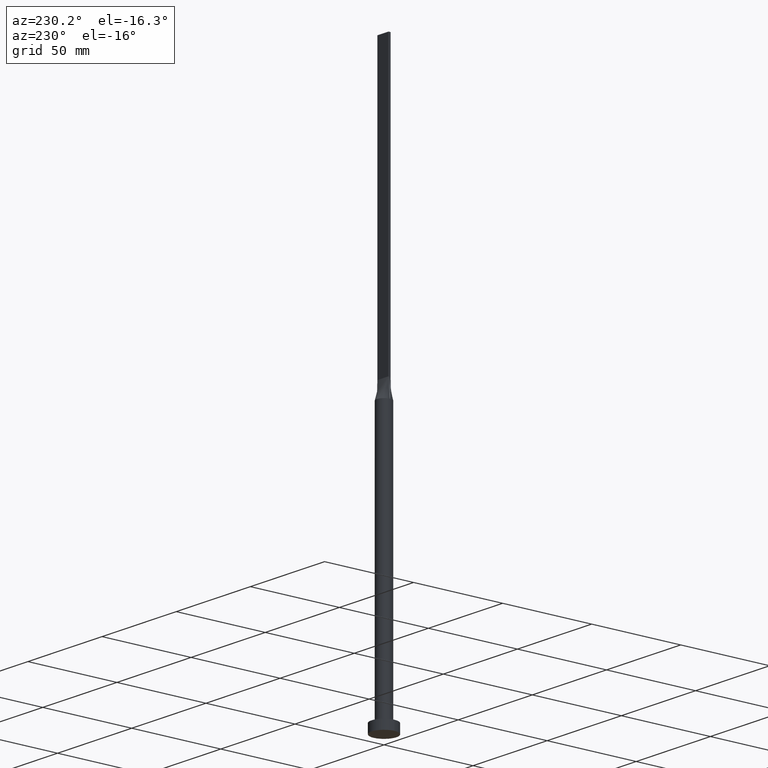
[diagram: clean part render]
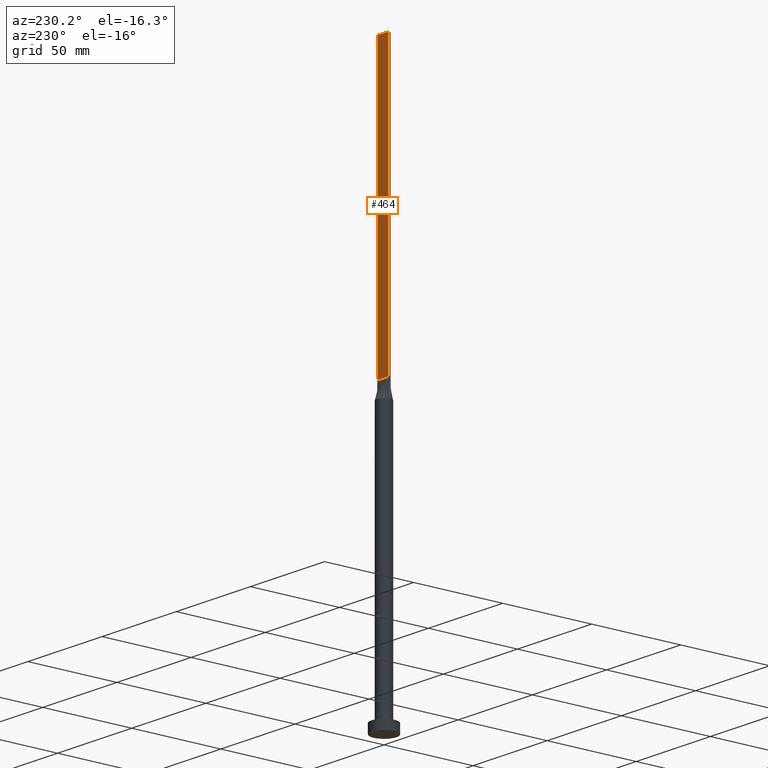
[diagram: same view with one face highlighted and labeled with its STEP entity id]
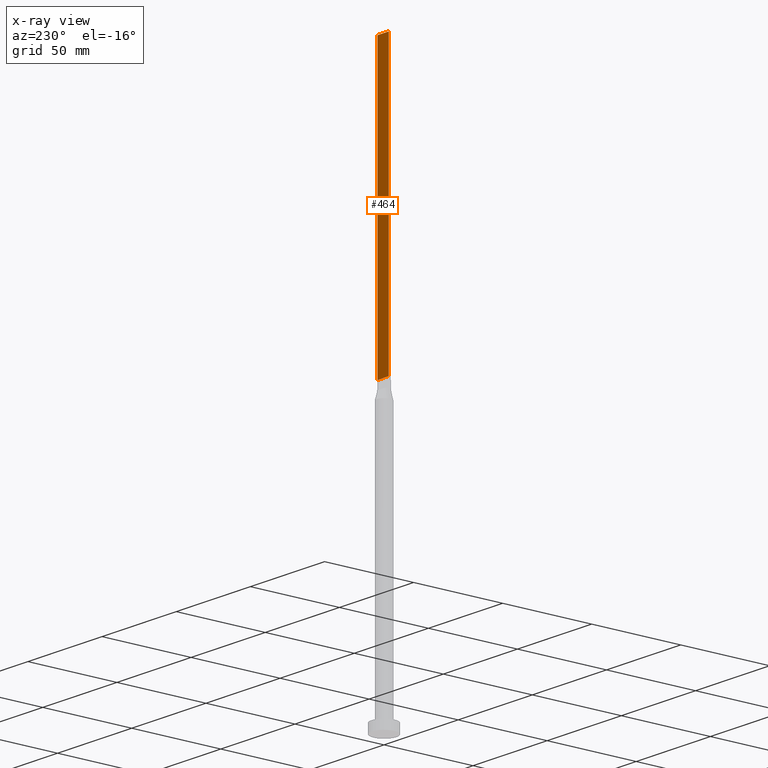
[diagram: x-ray of the same camera — body ghosted, the highlighted face saturated]
A machine part, auxiliary view. The second image highlights one B-rep face of the part: STEP entity #464.
The next image is the same camera in x-ray: the body ghosted, the highlighted face saturated — about 0% of this face is hidden behind the body in this view.
In plain terms, the highlighted planar face has unit normal (0, -1, 0).
Its self-contained STEP definition (entity closure, byte-faithful):
#23 = VERTEX_POINT ( 'NONE', #36 ) ;
#30 = ORIENTED_EDGE ( 'NONE', *, *, #444, .F. ) ;
#36 = CARTESIAN_POINT ( 'NONE',  ( 3.750000000000000000, 0.6000000000000001998, 160.0000000000000000 ) ) ;
#40 = DIRECTION ( 'NONE',  ( 0.000000000000000000, -1.000000000000000000, 0.000000000000000000 ) ) ;
#54 = VERTEX_POINT ( 'NONE', #570 ) ;
#88 = CARTESIAN_POINT ( 'NONE',  ( 3.750000000000000000, 0.6000000000000001998, 315.0000000000000000 ) ) ;
#97 = DIRECTION ( 'NONE',  ( -1.000000000000000000, 0.000000000000000000, 0.000000000000000000 ) ) ;
#99 = LINE ( 'NONE', #549, #489 ) ;
#103 = CARTESIAN_POINT ( 'NONE',  ( 3.750000000000000000, 0.6000000000000001998, 315.0000000000000000 ) ) ;
#107 = CARTESIAN_POINT ( 'NONE',  ( -3.750000000000000000, 0.6000000000000001998, 160.0000000000000000 ) ) ;
#118 = VECTOR ( 'NONE', #155, 1000.000000000000000 ) ;
#137 = CARTESIAN_POINT ( 'NONE',  ( 3.750000000000000000, 0.6000000000000001998, 315.0000000000000000 ) ) ;
#143 = PLANE ( 'NONE',  #173 ) ;
#155 = DIRECTION ( 'NONE',  ( -0.000000000000000000, -0.000000000000000000, -1.000000000000000000 ) ) ;
#173 = AXIS2_PLACEMENT_3D ( 'NONE', #137, #40, #360 ) ;
#231 = DIRECTION ( 'NONE',  ( -0.000000000000000000, -0.000000000000000000, -1.000000000000000000 ) ) ;
#244 = CARTESIAN_POINT ( 'NONE',  ( -3.750000000000000000, 0.6000000000000001998, 315.0000000000000000 ) ) ;
#271 = EDGE_CURVE ( 'NONE', #327, #23, #322, .T. ) ;
#280 = ORIENTED_EDGE ( 'NONE', *, *, #271, .T. ) ;
#310 = FACE_OUTER_BOUND ( 'NONE', #563, .T. ) ;
#322 = LINE ( 'NONE', #88, #465 ) ;
#327 = VERTEX_POINT ( 'NONE', #103 ) ;
#358 = EDGE_CURVE ( 'NONE', #23, #558, #492, .T. ) ;
#360 = DIRECTION ( 'NONE',  ( 0.000000000000000000, -0.000000000000000000, -1.000000000000000000 ) ) ;
#380 = ORIENTED_EDGE ( 'NONE', *, *, #358, .T. ) ;
#387 = CARTESIAN_POINT ( 'NONE',  ( -3.750000000000000000, 0.6000000000000001998, 160.0000000000000000 ) ) ;
#393 = DIRECTION ( 'NONE',  ( -1.000000000000000000, -0.000000000000000000, -0.000000000000000000 ) ) ;
#420 = LINE ( 'NONE', #244, #118 ) ;
#444 = EDGE_CURVE ( 'NONE', #327, #54, #99, .T. ) ;
#464 = ADVANCED_FACE ( 'NONE', ( #310 ), #143, .F. ) ;
#465 = VECTOR ( 'NONE', #231, 1000.000000000000000 ) ;
#489 = VECTOR ( 'NONE', #97, 1000.000000000000000 ) ;
#492 = LINE ( 'NONE', #387, #535 ) ;
#516 = ORIENTED_EDGE ( 'NONE', *, *, #566, .F. ) ;
#535 = VECTOR ( 'NONE', #393, 1000.000000000000000 ) ;
#549 = CARTESIAN_POINT ( 'NONE',  ( 3.750000000000000000, 0.6000000000000001998, 315.0000000000000000 ) ) ;
#558 = VERTEX_POINT ( 'NONE', #107 ) ;
#563 = EDGE_LOOP ( 'NONE', ( #380, #516, #30, #280 ) ) ;
#566 = EDGE_CURVE ( 'NONE', #54, #558, #420, .T. ) ;
#570 = CARTESIAN_POINT ( 'NONE',  ( -3.750000000000000000, 0.6000000000000001998, 315.0000000000000000 ) ) ;